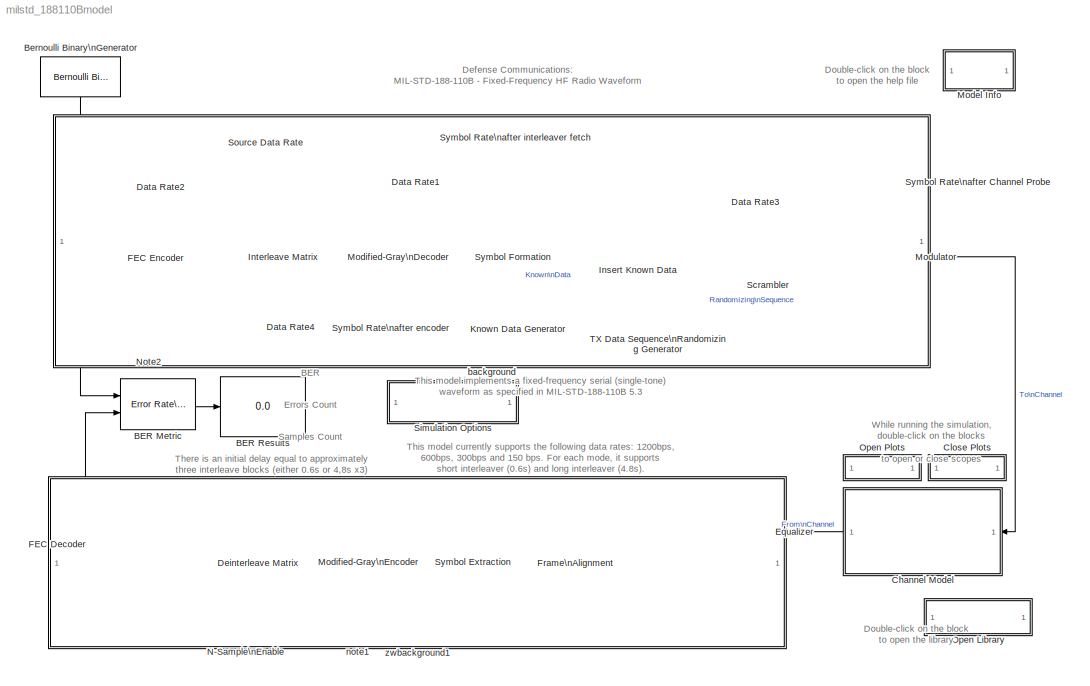
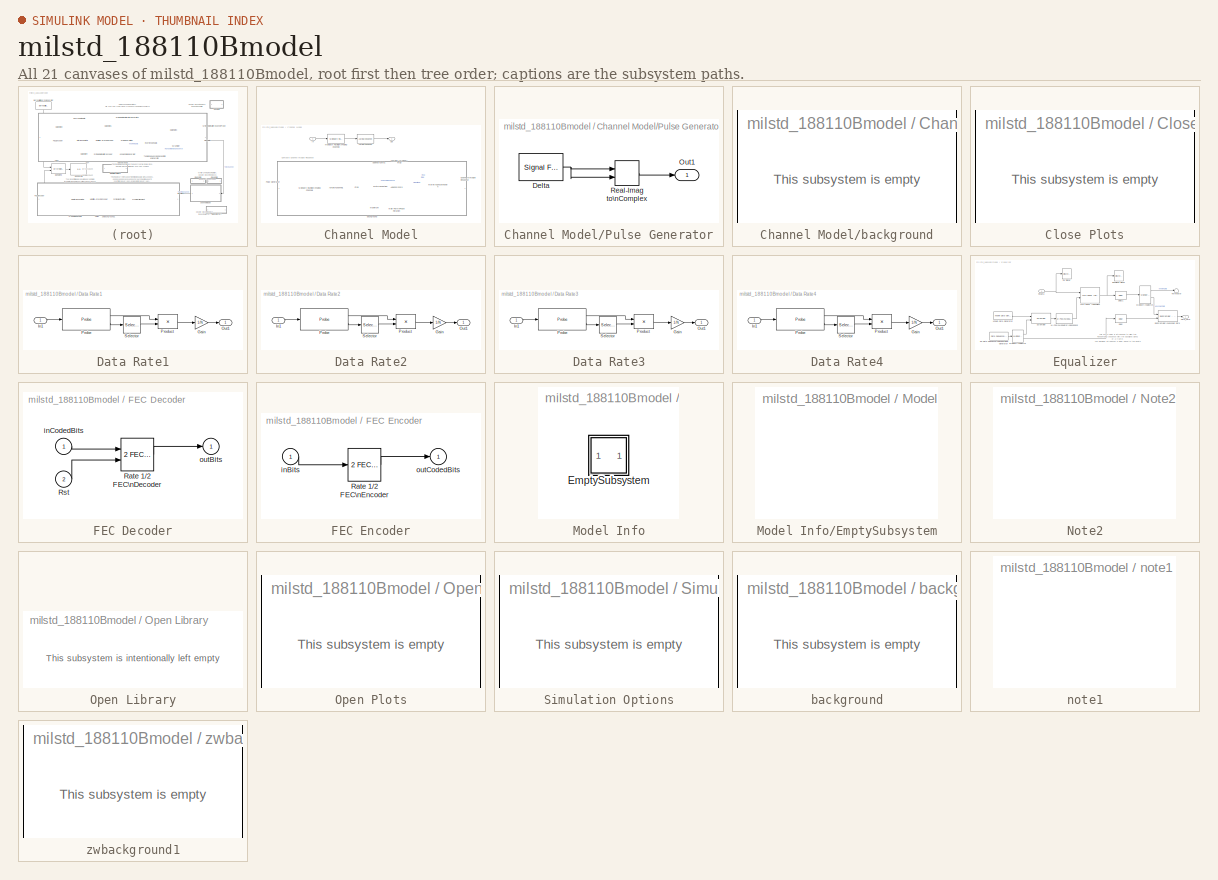
[diagram: thumbnail index - all 21 canvases of the model, root first then tree order]
MODEL milstd_188110Bmodel
KIND model
CONFIG InitFcn = %Initialize variables\n\nmilstd = milstd_initmask([gcs '/Simulation Options']);
BLOCK [Reference] BER Metric  REF=commsink2/Error Rate\nCalculation
  N = 34+milstd.rate*milstd.interl*3 % Three interleave blocks plus traceback
  PMode = Port
  Ports = [2, 1]
  RsMode2 = off
  SourceBlock = commsink2/Error Rate\nCalculation
  SourceType = Error Rate Calculation
  WsName = ErrorVec
  cp_mode = Entire frame
  maxBits = 1e6
  numErr = 100
  st_delay = 0
  stop = off
  subframe = []
BLOCK [Display] BER Results
  Decimation = 1
  Ports = [1]
BLOCK [Reference] Bernoulli Binary\nGenerator  REF=commrandsrc2/Bernoulli Binary\nGenerator
  P = 0.5
  Ports = [0, 1]
  ShowPortLabels = on
  SourceBlock = commrandsrc2/Bernoulli Binary\nGenerator
  SourceType = Bernoulli Binary Generator
  Ts = 1/1200
  frameBased = on
  orient = off
  sampPerFrame = 1200*0.2
  seed = 61
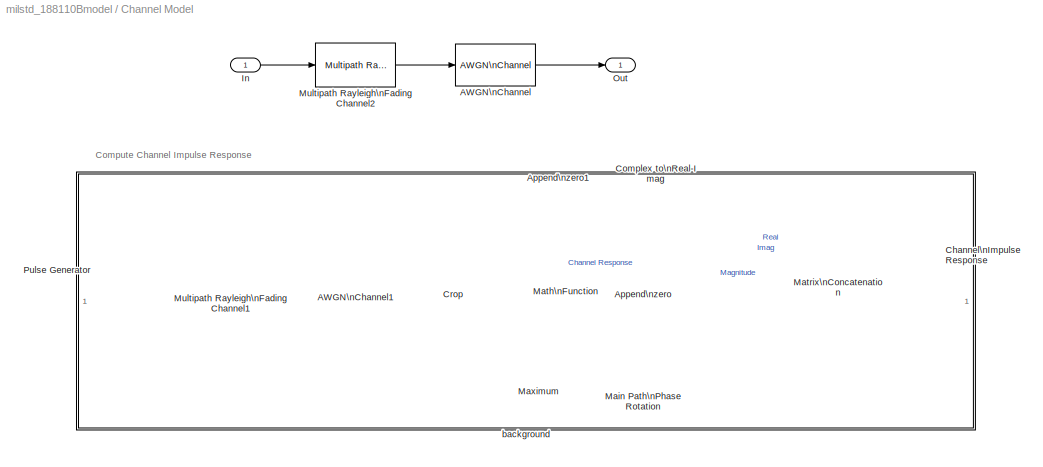
BLOCK [SubSystem] Channel Model
  MaskDisplay = plot(0,0,100,100,[90,60,70,30,40,10],[50,40,70,40,70,50])\ntext(10,20,'Watterson Fading + AWGN')
  MaskIconFrame = on
  MaskIconOpaque = on
  MaskIconRotate = none
  MaskIconUnits = autoscale
  MinAlgLoopOccurrences = off
  Ports = [1, 1]
  PropExecContextAcrossSSBoundary = on
  RTWSystemCode = Auto
  TreatAsAtomicUnit = off
BLOCK [Reference] Channel Model/AWGN\nChannel  REF=commchan2/AWGN\nChannel
  EbNodB = 10
  EsNodB = 27
  Ports = [1, 1]
  Ps = 1
  SNRdB = 10
  ShowPortLabels = on
  SourceBlock = commchan2/AWGN\nChannel
  SourceType = AWGN Channel
  Tsym = 1/2400
  bitsPerSym = 1
  noiseMode = Signal to noise ratio  (Es/No)
  seed = 67
  variance = 1
BLOCK [Reference] Channel Model/AWGN\nChannel1  REF=commchan2/AWGN\nChannel
  EbNodB = 10
  EsNodB = 27
  Ports = [1, 1]
  Ps = 1
  SNRdB = 10
  ShowPortLabels = on
  SourceBlock = commchan2/AWGN\nChannel
  SourceType = AWGN Channel
  Tsym = 1/2400
  bitsPerSym = 1
  noiseMode = Signal to noise ratio  (Es/No)
  seed = 67
  variance = 1
BLOCK [Reference] Channel Model/Append\nzero  REF=dspsigops/Zero Pad
  Ports = [1, 1]
  SourceBlock = dspsigops/Zero Pad
  SourceType = Zero Pad
  numOutCols = 1
  numOutRows = 9
  padNumOutColsSpecMethod = User-specified
  padNumOutRowsSpecMethod = User-specified
  padSigAt = Beginning
  trunc_flag = None
  zpadAlong = Columns
BLOCK [Reference] Channel Model/Append\nzero1  REF=dspsigops/Zero Pad
  Ports = [1, 1]
  SourceBlock = dspsigops/Zero Pad
  SourceType = Zero Pad
  numOutCols = 1
  numOutRows = 9
  padNumOutColsSpecMethod = User-specified
  padNumOutRowsSpecMethod = User-specified
  padSigAt = Beginning
  trunc_flag = None
  zpadAlong = Columns
BLOCK [Reference] Channel Model/Channel\nImpulse Response  REF=dspsnks4/Vector\nScope
  AxisGrid = on
  AxisLegend = on
  AxisProperties = on
  AxisZoom = off
  DisplayProperties = off
  Domain = User-defined
  FigPos = figposition([6    61    57    28])
  FrameNumber = off
  HorizSpan = 1
  InheritXIncr = off
  LineColors = [0 0 1]|[1 0 0]|[0 0 0]
  LineMarkers = *|*|o
  LineProperties = off
  Memory = off
  OpenScopeAtSimStart = on
  OpenScopeImmediately = off
  Ports = [1]
  ScopeProperties = off
  ShowPortLabels = off
  SourceBlock = dspsnks4/Vector\nScope
  SourceType = Vector Scope
  XIncr = 1
  XLabel = Channel Impulse Response
  XRange = [0...Fs/2]
  XUnits = Hertz
  YLabel = Amplitude
  YMax = 2
  YMin = -2
  YUnits = dB
BLOCK [ComplexToRealImag] Channel Model/Complex to\nReal-Imag
  Output = Real and imag
  Ports = [1, 2]
BLOCK [Reference] Channel Model/Crop  REF=dspsigops/Zero Pad
  Ports = [1, 1]
  SourceBlock = dspsigops/Zero Pad
  SourceType = Zero Pad
  numOutCols = 1
  numOutRows = 8
  padNumOutColsSpecMethod = User-specified
  padNumOutRowsSpecMethod = User-specified
  padSigAt = End
  trunc_flag = None
  zpadAlong = Columns
BLOCK [Inport] Channel Model/In
  IconDisplay = Port number
  LatchInput = off
BLOCK [Reference] Channel Model/Main Path\nPhase Rotation  REF=commsink2/Discrete-Time\nScatter Plot\nScope
  AxisGrid = on
  FigPos = figposition([65    61    24    32])
  FrameNumber = off
  LineColors = b
  LineMarkers = .
  Ports = [1]
  ShowPortLabels = on
  SourceBlock = commsink2/Discrete-Time\nScatter Plot\nScope
  SourceType = Discrete-Time Scatter Plot Scope
  Tag = ScatterPlot
  block_type_ = scatter
  fading = on
  figTitle = .
  inphaseLabel = Main Path Phase Rotation
  numLinesMax = 8
  numNewFrames = 5
  numTraces = 100
  offsetEye = 0
  openScopeAtSimStart = on
  quadratureLabel = .
  render = on
  sampPerSymb = 1
  xMax = 2
  xMin = -2
  yMax = 2
  yMin = -2
BLOCK [Math] Channel Model/Math\nFunction
  Operator = magnitude^2
  Ports = [1, 1]
BLOCK [Reference] Channel Model/Matrix\nConcatenation  REF=simulink/Math\nOperations/Matrix\nConcatenation
  Ports = [3, 1]
  SourceBlock = simulink/Math\nOperations/Matrix\nConcatenation
  SourceType = Matrix Concatenation
  catMethod = Horizontal
  numInports = 3
BLOCK [Reference] Channel Model/Maximum  REF=dspstat3/Maximum
  Ports = [1, 1]
  SourceBlock = dspstat3/Maximum
  SourceType = Maximum
  accumFracLength = 30
  accumMode = Same as product output
  accumWordLength = 32
  additionalParams = off
  allowOverrides = on
  fcn = Value
  overflowMode = off
  prodOutputFracLength = 30
  prodOutputMode = Same as input
  prodOutputWordLength = 32
  reset = None
  roundingMode = Floor
BLOCK [Reference] Channel Model/Multipath Rayleigh\nFading Channel1  REF=commchan2/Multipath Rayleigh\nFading Channel
  Fd = 0.075
  Ports = [1, 1]
  Seed = 73
  ShowPortLabels = on
  SourceBlock = commchan2/Multipath Rayleigh\nFading Channel
  SourceType = Multipath Rayleigh Fading Channel
  delayVec = [0 2e-3]
  gainVecdB = [0 0]
  normGain = off
  simTs = 1/2400
BLOCK [Reference] Channel Model/Multipath Rayleigh\nFading Channel2  REF=commchan2/Multipath Rayleigh\nFading Channel
  Fd = 0.075
  Ports = [1, 1]
  Seed = 73
  ShowPortLabels = on
  SourceBlock = commchan2/Multipath Rayleigh\nFading Channel
  SourceType = Multipath Rayleigh Fading Channel
  delayVec = [0 2e-3]
  gainVecdB = [0 0]
  normGain = off
  simTs = 1/2400
BLOCK [Outport] Channel Model/Out
  BusOutputAsStruct = off
  IconDisplay = Port number
BLOCK [SubSystem] Channel Model/Pulse Generator
  MaskDisplay = plot(0,0,45,100,[5 10 10 10 40],[0 0 60 0 0]+20)
  MaskIconFrame = on
  MaskIconOpaque = on
  MaskIconRotate = none
  MaskIconUnits = autoscale
  MinAlgLoopOccurrences = off
  Ports = [0, 1]
  PropExecContextAcrossSSBoundary = on
  RTWSystemCode = Auto
  TreatAsAtomicUnit = off
BLOCK [Reference] Channel Model/Pulse Generator/Delta  REF=dspsrcs4/Signal From\nWorkspace
  OutputAfterFinalValue = Cyclic repetition
  Ports = [0, 1]
  ShowPortLabels = on
  SourceBlock = dspsrcs4/Signal From\nWorkspace
  SourceType = Signal From Workspace
  Ts = 1/2400
  X = [1; zeros(39,1)]
  nsamps = 40
BLOCK [Outport] Channel Model/Pulse Generator/Out1
  BusOutputAsStruct = off
  IconDisplay = Port number
BLOCK [RealImagToComplex] Channel Model/Pulse Generator/Real-Imag to\nComplex
  Input = Real and imag
  Ports = [2, 1]
BLOCK [SubSystem] Channel Model/background
  MaskDisplay = disp('')
  MaskIconFrame = on
  MaskIconOpaque = on
  MaskIconRotate = none
  MaskIconUnits = autoscale
  MinAlgLoopOccurrences = off
  Ports = []
  PropExecContextAcrossSSBoundary = on
  RTWSystemCode = Auto
  TreatAsAtomicUnit = off
BLOCK [SubSystem] Close Plots
  MaskDisplay = disp('Close Scopes');
  MaskIconFrame = on
  MaskIconOpaque = on
  MaskIconRotate = none
  MaskIconUnits = autoscale
  MinAlgLoopOccurrences = off
  OpenFcn = str1 = 'Equalizer';                                                        \nstr2 = 'RX Signal';                                                        \nstr3='Equalized Signal';                                                   \nstr4 = 'Channel Model';                                                    \n                                                                           \nstr5 = 'Main Pa...<+598ch>
  Ports = []
  PropExecContextAcrossSSBoundary = on
  RTWSystemCode = Auto
  TreatAsAtomicUnit = off
BLOCK [SubSystem] Data Rate1
  MaskDisplay = disp('Data Rate')
  MaskEnableString = on
  MaskIconFrame = on
  MaskIconOpaque = on
  MaskIconRotate = none
  MaskIconUnits = autoscale
  MaskPromptString = Bits per symbol:
  MaskStyleString = edit
  MaskToolTipString = on
  MaskTunableValueString = on
  MaskType = Compute Data Rate
  MaskValueString = 2
  MaskVariables = N=@1;
  MaskVisibilityString = on
  MinAlgLoopOccurrences = off
  Ports = [1, 1]
  PropExecContextAcrossSSBoundary = on
  RTWSystemCode = Auto
  TreatAsAtomicUnit = off
BLOCK [Gain] Data Rate1/Gain
  Gain = 1/N
BLOCK [Inport] Data Rate1/In1
  IconDisplay = Port number
  LatchInput = off
BLOCK [Outport] Data Rate1/Out1
  BusOutputAsStruct = off
  IconDisplay = Port number
BLOCK [Probe] Data Rate1/Probe
  Ports = [1, 2]
  ProbeComplexSignal = off
BLOCK [Product] Data Rate1/Product
  InputSameDT = off
  Inputs = */
  Ports = [2, 1]
  RndMeth = Floor
BLOCK [Selector] Data Rate1/Selector
  InputPortWidth = 2
  Ports = [1, 1]
BLOCK [SubSystem] Data Rate2
  MaskDisplay = disp('Data Rate')
  MaskEnableString = on
  MaskIconFrame = on
  MaskIconOpaque = on
  MaskIconRotate = none
  MaskIconUnits = autoscale
  MaskPromptString = Bits per symbol:
  MaskStyleString = edit
  MaskToolTipString = on
  MaskTunableValueString = on
  MaskType = Compute Data Rate
  MaskValueString = 1
  MaskVariables = N=@1;
  MaskVisibilityString = on
  MinAlgLoopOccurrences = off
  Ports = [1, 1]
  PropExecContextAcrossSSBoundary = on
  RTWSystemCode = Auto
  TreatAsAtomicUnit = off
BLOCK [Gain] Data Rate2/Gain
  Gain = 1/N
BLOCK [Inport] Data Rate2/In1
  IconDisplay = Port number
  LatchInput = off
BLOCK [Outport] Data Rate2/Out1
  BusOutputAsStruct = off
  IconDisplay = Port number
BLOCK [Probe] Data Rate2/Probe
  Ports = [1, 2]
  ProbeComplexSignal = off
BLOCK [Product] Data Rate2/Product
  InputSameDT = off
  Inputs = */
  Ports = [2, 1]
  RndMeth = Floor
BLOCK [Selector] Data Rate2/Selector
  InputPortWidth = 2
  Ports = [1, 1]
BLOCK [SubSystem] Data Rate3
  MaskDisplay = disp('Data Rate')
  MaskEnableString = on
  MaskIconFrame = on
  MaskIconOpaque = on
  MaskIconRotate = none
  MaskIconUnits = autoscale
  MaskPromptString = Bits per symbol:
  MaskStyleString = edit
  MaskToolTipString = on
  MaskTunableValueString = on
  MaskType = Compute Data Rate
  MaskValueString = 3
  MaskVariables = N=@1;
  MaskVisibilityString = on
  MinAlgLoopOccurrences = off
  Ports = [1, 1]
  PropExecContextAcrossSSBoundary = on
  RTWSystemCode = Auto
  TreatAsAtomicUnit = off
BLOCK [Gain] Data Rate3/Gain
  Gain = 1/N
BLOCK [Inport] Data Rate3/In1
  IconDisplay = Port number
  LatchInput = off
BLOCK [Outport] Data Rate3/Out1
  BusOutputAsStruct = off
  IconDisplay = Port number
BLOCK [Probe] Data Rate3/Probe
  Ports = [1, 2]
  ProbeComplexSignal = off
BLOCK [Product] Data Rate3/Product
  InputSameDT = off
  Inputs = */
  Ports = [2, 1]
  RndMeth = Floor
BLOCK [Selector] Data Rate3/Selector
  InputPortWidth = 2
  Ports = [1, 1]
BLOCK [SubSystem] Data Rate4
  MaskDisplay = disp('Data Rate')
  MaskEnableString = on
  MaskIconFrame = on
  MaskIconOpaque = on
  MaskIconRotate = none
  MaskIconUnits = autoscale
  MaskPromptString = Bits per symbol:
  MaskStyleString = edit
  MaskToolTipString = on
  MaskTunableValueString = on
  MaskType = Compute Data Rate
  MaskValueString = 1
  MaskVariables = N=@1;
  MaskVisibilityString = on
  MinAlgLoopOccurrences = off
  Ports = [1, 1]
  PropExecContextAcrossSSBoundary = on
  RTWSystemCode = Auto
  TreatAsAtomicUnit = off
BLOCK [Gain] Data Rate4/Gain
  Gain = 1/N
BLOCK [Inport] Data Rate4/In1
  IconDisplay = Port number
  LatchInput = off
BLOCK [Outport] Data Rate4/Out1
  BusOutputAsStruct = off
  IconDisplay = Port number
BLOCK [Probe] Data Rate4/Probe
  Ports = [1, 2]
  ProbeComplexSignal = off
BLOCK [Product] Data Rate4/Product
  InputSameDT = off
  Inputs = */
  Ports = [2, 1]
  RndMeth = Floor
BLOCK [Selector] Data Rate4/Selector
  InputPortWidth = 2
  Ports = [1, 1]
BLOCK [Reference] Deinterleave Matrix  REF=milstd_library/Deinterleave Matrix  (lib defined in mdl_f392efc64685)
  Ports = [1, 1]
  ShowPortLabels = on
  SourceBlock = milstd_library/Deinterleave Matrix
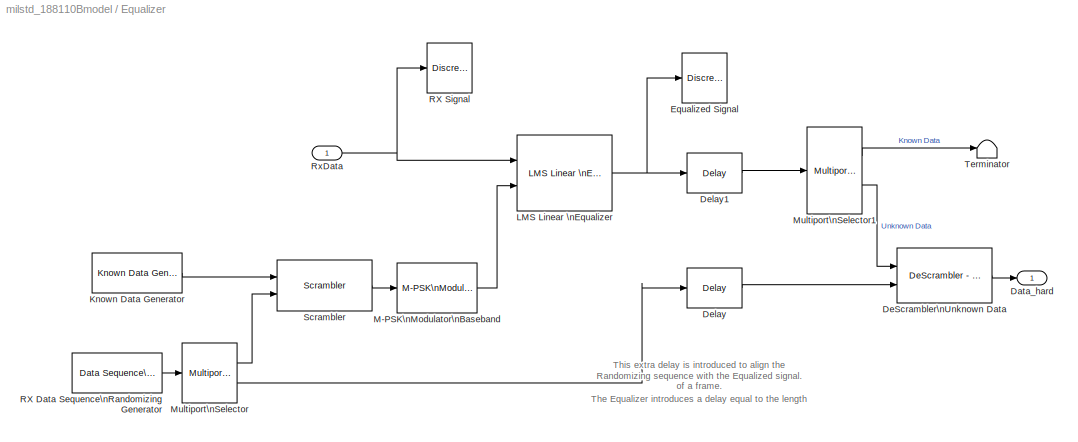
BLOCK [SubSystem] Equalizer
  MaskDisplay = disp('Equalizer:\\nLMS Equalizer');
  MaskIconFrame = on
  MaskIconOpaque = on
  MaskIconRotate = none
  MaskIconUnits = autoscale
  MinAlgLoopOccurrences = off
  Ports = [1, 1]
  PropExecContextAcrossSSBoundary = on
  RTWSystemCode = Auto
  TreatAsAtomicUnit = off
BLOCK [Outport] Equalizer/Data_hard
  BusOutputAsStruct = off
  IconDisplay = Port number
BLOCK [Reference] Equalizer/DeScrambler\nUnknown Data  REF=milstd_library/DeScrambler - complex  (lib defined in mdl_f392efc64685)
  Ports = [2, 1]
  ShowPortLabels = on
  SourceBlock = milstd_library/DeScrambler - complex
  SourceType = Unknown
BLOCK [Reference] Equalizer/Delay  REF=dspsigops/Delay
  Ports = [1, 1]
  SourceBlock = dspsigops/Delay
  SourceType = Delay
  delay = 20
  dif_ic_for_ch = off
  dif_ic_for_dly = off
  dly_unit = Samples
  ic = 0
  ic_detail = off
  reset_popup = None
BLOCK [Reference] Equalizer/Delay1  REF=dspsigops/Delay
  Ports = [1, 1]
  SourceBlock = dspsigops/Delay
  SourceType = Delay
  delay = 40-1
  dif_ic_for_ch = off
  dif_ic_for_dly = off
  dly_unit = Samples
  ic = 0
  ic_detail = off
  reset_popup = None
BLOCK [Reference] Equalizer/Equalized Signal  REF=commsink2/Discrete-Time\nScatter Plot\nScope
  AxisGrid = on
  FigPos = figposition([40    11    32    43])
  FrameNumber = off
  LineColors = b
  LineMarkers = .
  Ports = [1]
  ShowPortLabels = on
  SourceBlock = commsink2/Discrete-Time\nScatter Plot\nScope
  SourceType = Discrete-Time Scatter Plot Scope
  Tag = ScatterPlot
  block_type_ = scatter
  fading = on
  figTitle = .
  inphaseLabel = After Equalizer (To Decoding)
  numLinesMax = 8
  numNewFrames = 40
  numTraces = 160
  offsetEye = 0
  openScopeAtSimStart = on
  quadratureLabel = .
  render = on
  sampPerSymb = 1
  xMax = 1.33819643567585
  xMin = -1.29510330913857
  yMax = 1.30272609148645
  yMin = -1.33057365332797
BLOCK [Reference] Equalizer/Known Data Generator  REF=milstd_library/Known Data Generator  (lib defined in mdl_f392efc64685)
  Ports = [0, 1]
  ShowPortLabels = on
  SourceBlock = milstd_library/Known Data Generator
  SourceType = SubSystem
BLOCK [Reference] Equalizer/LMS Linear \nEqualizer  REF=commeq2/LMS Linear \nEqualizer
  Ports = [2, 1]
  ShowPortLabels = on
  SourceBlock = commeq2/LMS Linear \nEqualizer
  SourceType = LMS Linear Equalizer
  delay = 1
  initWeights = [1 zeros(1,15)]
  leakage = 1
  mode = off
  nSamp = 1
  nTaps = 16
  outErr = off
  outWeights = off
  sigConst = pskmod([0:7],8) % 8-PSK modulation
  stepSize = 0.01
BLOCK [Reference] Equalizer/M-PSK\nModulator\nBaseband  REF=commdigbbndpm2/M-PSK\nModulator\nBaseband
  Enc = Binary
  InType = Integer
  M = 8
  Ph = 0
  Ports = [1, 1]
  SourceBlock = commdigbbndpm2/M-PSK\nModulator\nBaseband
  SourceType = M-PSK Modulator Baseband
  numSamp = 1
BLOCK [Reference] Equalizer/Multiport\nSelector  REF=dspindex/Multiport\nSelector
  Ports = [1, 2]
  SourceBlock = dspindex/Multiport\nSelector
  SourceType = Multiport Selector
  idxCellArray = {[1:20],[21:40] }
  idxErrMode = Clip Index
  rowsOrCols = Rows
BLOCK [Reference] Equalizer/Multiport\nSelector1  REF=dspindex/Multiport\nSelector
  Ports = [1, 2]
  SourceBlock = dspindex/Multiport\nSelector
  SourceType = Multiport Selector
  idxCellArray = { [1:20],[21:40]}
  idxErrMode = Clip Index
  rowsOrCols = Rows
BLOCK [Reference] Equalizer/RX Data Sequence\nRandomizing Generator  REF=milstd_library/Data Sequence\nRandomizing Generator  (lib defined in mdl_f392efc64685)
  Ports = [0, 1]
  ShowPortLabels = on
  SourceBlock = milstd_library/Data Sequence\nRandomizing Generator
  SourceType = SubSystem
BLOCK [Reference] Equalizer/RX Signal  REF=commsink2/Discrete-Time\nScatter Plot\nScope
  AxisGrid = on
  FigPos = figposition([6    11    32    43])
  FrameNumber = off
  LineColors = b
  LineMarkers = .
  Ports = [1]
  ShowPortLabels = on
  SourceBlock = commsink2/Discrete-Time\nScatter Plot\nScope
  SourceType = Discrete-Time Scatter Plot Scope
  Tag = ScatterPlot
  block_type_ = scatter
  fading = on
  figTitle = .
  inphaseLabel = Before Equalizer (From Channel)
  numLinesMax = 8
  numNewFrames = 40
  numTraces = 160
  offsetEye = 0
  openScopeAtSimStart = on
  quadratureLabel = .
  render = on
  sampPerSymb = 1
  xMax = 1.9414795542373
  xMin = -1.91692231790696
  yMax = 1.92280599413788
  yMin = -1.93559587800639
BLOCK [Inport] Equalizer/RxData
  IconDisplay = Port number
  LatchInput = off
BLOCK [Reference] Equalizer/Scrambler  REF=milstd_library/Scrambler  (lib defined in mdl_f392efc64685)
  Ports = [2, 1]
  ShowPortLabels = on
  SourceBlock = milstd_library/Scrambler
  SourceType = Unknown
BLOCK [Terminator] Equalizer/Terminator
BLOCK [SubSystem] FEC Decoder
  AttributesFormatString = %<BlockChoice>
  BlockChoice = Rate 1/2 FEC Decoder
  MemberBlocks = Rate 1/2 FEC Decoder,Rate 1/2 FEC Decoder with Derepetition
  MinAlgLoopOccurrences = off
  Ports = [2, 1]
  PropExecContextAcrossSSBoundary = on
  RTWSystemCode = Auto
  ShowPortLabels = off
  TemplateBlock = milstd_library/FEC Decoder
  TreatAsAtomicUnit = off
BLOCK [Reference] FEC Decoder/Rate 1//2 FEC\nDecoder  REF=milstd_library/Rate 1//2 FEC\nDecoder  (lib defined in mdl_f392efc64685)
  Ports = [2, 1]
  ShowPortLabels = on
  SourceBlock = milstd_library/Rate 1//2 FEC\nDecoder
BLOCK [Inport] FEC Decoder/Rst
  IconDisplay = Port number
  LatchInput = off
  Port = 2
BLOCK [Inport] FEC Decoder/inCodedBits
  IconDisplay = Port number
  LatchInput = off
BLOCK [Outport] FEC Decoder/outBits
  BusOutputAsStruct = off
  IconDisplay = Port number
BLOCK [SubSystem] FEC Encoder
  AttributesFormatString = %<BlockChoice>
  BlockChoice = Rate 1/2 FEC Encoder
  MemberBlocks = Rate 1/2 FEC Encoder,Rate 1/2 FEC Encoder with Repetition
  MinAlgLoopOccurrences = off
  Ports = [1, 1]
  PropExecContextAcrossSSBoundary = on
  RTWSystemCode = Auto
  ShowPortLabels = off
  TemplateBlock = milstd_library/FEC Encoder
  TreatAsAtomicUnit = off
BLOCK [Reference] FEC Encoder/Rate 1//2 FEC\nEncoder  REF=milstd_library/Rate 1//2 FEC\nEncoder  (lib defined in mdl_f392efc64685)
  Ports = [1, 1]
  ShowPortLabels = on
  SourceBlock = milstd_library/Rate 1//2 FEC\nEncoder
BLOCK [Inport] FEC Encoder/inBits
  IconDisplay = Port number
  LatchInput = off
BLOCK [Outport] FEC Encoder/outCodedBits
  BusOutputAsStruct = off
  IconDisplay = Port number
BLOCK [Reference] Frame\nAlignment  REF=milstd_library/Frame\nAlignment  (lib defined in mdl_f392efc64685)
  Ports = [1, 1]
  ShowPortLabels = on
  SourceBlock = milstd_library/Frame\nAlignment
BLOCK [Reference] Insert Known Data  REF=milstd_library/Insert Known Data  (lib defined in mdl_f392efc64685)
  Ports = [2, 1]
  ShowPortLabels = on
  SourceBlock = milstd_library/Insert Known Data
BLOCK [Reference] Interleave Matrix  REF=milstd_library/Interleave Matrix  (lib defined in mdl_f392efc64685)
  Ports = [1, 1]
  ShowPortLabels = on
  SourceBlock = milstd_library/Interleave Matrix
BLOCK [Reference] Known Data Generator  REF=milstd_library/Known Data Generator  (lib defined in mdl_f392efc64685)
  Ports = [0, 1]
  ShowPortLabels = on
  SourceBlock = milstd_library/Known Data Generator
  SourceType = SubSystem
BLOCK [SubSystem] Model Info
  CopyFcn = slcm CopyBlock;
  DeleteFcn = slcm Cancel;
  InitFcn = slcm('UpdateAllCMBlocksInThisModelInit')
  LoadFcn = slcm LoadBlock;
  MaskCallbackString = ||||||||||||||||||||||||||||||
  MaskDescription = This block allows revision control information to be displayed within the model.
  MaskDisplay = text(str2num(LeftAlignmentValue), 0.5, MaskDisplayString, 'HorizontalAlignment', HorizontalTextAlignment)\n
  MaskEnableString = on,on,on,on,on,on,on,on,on,on,on,on,on,on,on,on,on,on,on,on,on,on,on,on,on,on,on,on,on,on,on
  MaskIconFrame = on
  MaskIconOpaque = on
  MaskIconRotate = none
  MaskIconUnits = normalized
  MaskPromptString = InitialSaveTempField|InitialBlockCM|BlockCM|Frame|SaveTempField|DisplayStringWithTags|MaskDisplayString|HorizontalTextAlignment|LeftAlignmentValue|SourceBlockDiagram|TagMaxNumber|CMTag1|CMTag2|CMTag3|CMTag4|CMTag5|CMTag6|CMTag7|CMTag8|CMTag9|CMTag10|CMTag11|CMTag12|CMTag13|CMTag14|CMTag15|CMTag16|CMTag17|CMTag18|CMTag19|CMTag20
  MaskSelfModifiable = on
  MaskStyleString = edit,edit,edit,edit,edit,edit,edit,edit,edit,edit,edit,edit,edit,edit,edit,edit,edit,edit,edit,edit,edit,edit,edit,edit,edit,edit,edit,edit,edit,edit,edit
  MaskTabNameString = ,,,,,,,,,,,,,,,,,,,,,,,,,,,,,,
  MaskToolTipString = on,on,on,on,on,on,on,on,on,on,on,on,on,on,on,on,on,on,on,on,on,on,on,on,on,on,on,on,on,on,on
  MaskTunableValueString = on,on,on,on,on,on,on,on,on,on,on,on,on,on,on,on,on,on,on,on,on,on,on,on,on,on,on,on,on,on,on
  MaskType = CMBlock
  MaskValueString = |None|None|on||Info|Info|Center|0.5|milstd_188110Bmodel|20||||||||||||||||||||
  MaskVarAliasString = ,,,,,,,,,,,,,,,,,,,,,,,,,,,,,,
  MaskVariables = InitialSaveTempField=&1;InitialBlockCM=&2;BlockCM=&3;Frame=&4;SaveTempField=&5;DisplayStringWithTags=&6;MaskDisplayString=&7;HorizontalTextAlignment=&8;LeftAlignmentValue=&9;SourceBlockDiagram=&10;TagMaxNumber=@11;CMTag1=&12;CMTag2=&13;CMTag3=&14;CMTag4=&15;CMTag5=&16;CMTag6=&17;CMTag7=&18;CMTag8=&19;CMTag9=&20;CMTag10=&21;CMTag11=&22;CMTag12=&23;CMTag13=&24;CMTag14=&25;CMTag15=&26;CMTag16=&27;CMT...<+45ch>
  MaskVisibilityString = off,off,off,off,off,off,off,off,off,off,off,off,off,off,off,off,off,off,off,off,off,off,off,off,off,off,off,off,off,off,off
  MinAlgLoopOccurrences = off
  NameChangeFcn = slcm Rename;
  OpenFcn = commdemohelp;
  Ports = []
  PostSaveFcn = slcm('UpdateAllCMBlocksInThisModel')
  PropExecContextAcrossSSBoundary = on
  RTWSystemCode = Auto
  TreatAsAtomicUnit = off
BLOCK [SubSystem] Model Info/EmptySubsystem
  MinAlgLoopOccurrences = off
  Ports = []
  PropExecContextAcrossSSBoundary = on
  RTWSystemCode = Auto
  TreatAsAtomicUnit = off
BLOCK [Reference] Modified-Gray\nDecoder  REF=milstd_library/Modified-Gray\nDecoder  (lib defined in mdl_f392efc64685)
  Ports = [1, 1]
  ShowPortLabels = on
  SourceBlock = milstd_library/Modified-Gray\nDecoder
BLOCK [Reference] Modified-Gray\nEncoder  REF=milstd_library/Modified-Gray\nEncoder  (lib defined in mdl_f392efc64685)
  Ports = [1, 1]
  ShowPortLabels = on
  SourceBlock = milstd_library/Modified-Gray\nEncoder
  SourceType = Modified-Gray Encoder
BLOCK [Reference] Modulator  REF=commdigbbndpm2/M-PSK\nModulator\nBaseband
  Enc = Binary
  InType = Integer
  M = 8
  Ph = 0
  Ports = [1, 1]
  SourceBlock = commdigbbndpm2/M-PSK\nModulator\nBaseband
  SourceType = M-PSK Modulator Baseband
  numSamp = 1
BLOCK [Reference] N-Sample\nEnable  REF=dspswit3/N-Sample\nEnable
  ActiveLevel = Low (0)
  DataType = Logical
  N = round(milstd.interl*3/0.2)
  Ports = [0, 1]
  SourceBlock = dspswit3/N-Sample\nEnable
  SourceType = N-Sample Enable
  TriggerType = Rising edge
  Ts = 0.2
  reset = off
BLOCK [SubSystem] Note2
  MaskDisplay = disp('Using a configurable\\nsubsystem, encoder\\n and decoder switch to\\nsupport bit repetition\\ndepending on data rate')
  MaskIconFrame = off
  MaskIconOpaque = on
  MaskIconRotate = none
  MaskIconUnits = autoscale
  MinAlgLoopOccurrences = off
  Ports = []
  PropExecContextAcrossSSBoundary = on
  RTWSystemCode = Auto
  TreatAsAtomicUnit = off
BLOCK [SubSystem] Open Library
  MaskDisplay = disp('MIL-STD-188-110B\\nLibrary')
  MaskIconFrame = on
  MaskIconOpaque = on
  MaskIconRotate = none
  MaskIconUnits = autoscale
  MinAlgLoopOccurrences = off
  OpenFcn = open('milstd_library.mdl');
  Ports = []
  PropExecContextAcrossSSBoundary = on
  RTWSystemCode = Auto
  ShowPortLabels = off
  TreatAsAtomicUnit = off
BLOCK [SubSystem] Open Plots
  MaskDisplay = disp('Open Scopes');
  MaskIconFrame = on
  MaskIconOpaque = on
  MaskIconRotate = none
  MaskIconUnits = autoscale
  MinAlgLoopOccurrences = off
  OpenFcn = str1 = 'Equalizer';                                                        \nstr2 = 'RX Signal';                                                        \nstr3='Equalized Signal';                                                   \nstr4 = 'Channel Model';                                                    \n                                                                           \nstr5 = 'Main Pa...<+599ch>
  Ports = []
  PropExecContextAcrossSSBoundary = on
  RTWSystemCode = Auto
  TreatAsAtomicUnit = off
BLOCK [Reference] Scrambler  REF=milstd_library/Scrambler  (lib defined in mdl_f392efc64685)
  Ports = [2, 1]
  ShowPortLabels = on
  SourceBlock = milstd_library/Scrambler
BLOCK [SubSystem] Simulation Options
  AttributesFormatString = Data Rate = %<infRate> bps\\nInterleaver Length = %<intLength> s
  MaskCallbackString = |
  MaskDescription = Select the different options for the simulation.\n\nThis model currently supports the following data rates: 1200 bps, 600 bps, 300 bps and 150 bps. \n\nFor each data rate, the model implements short (0.6s) and long (4.8s) interleaver.
  MaskDisplay = disp('Simulation\\nOptions')
  MaskEnableString = on,on
  MaskHelp = eval('commdemohelp;');
  MaskIconFrame = on
  MaskIconOpaque = on
  MaskIconRotate = none
  MaskIconUnits = autoscale
  MaskInitialization = milstd = milstd_initmask(gcb);\nassignin('base','milstd',milstd);
  MaskPromptString = Information Rate (bps):|Interleaver length (s):
  MaskStyleString = popup(1200|600|300|150),popup(4.8|0.6)
  MaskTabNameString = ,
  MaskToolTipString = on,on
  MaskTunableValueString = on,on
  MaskType = Simulation options
  MaskValueString = 1200|0.6
  MaskVarAliasString = ,
  MaskVariables = infRate=@1;intLength=@2;
  MaskVisibilityString = on,on
  MinAlgLoopOccurrences = off
  Ports = []
  PropExecContextAcrossSSBoundary = on
  RTWSystemCode = Auto
  TreatAsAtomicUnit = off
BLOCK [Display] Source Data Rate
  Decimation = 1
  Ports = [1]
BLOCK [Reference] Symbol Extraction  REF=milstd_library/Symbol Extraction  (lib defined in mdl_f392efc64685)
  Ports = [1, 1]
  ShowPortLabels = on
  SourceBlock = milstd_library/Symbol Extraction
BLOCK [Reference] Symbol Formation  REF=milstd_library/Symbol Formation  (lib defined in mdl_f392efc64685)
  Ports = [1, 1]
  ShowPortLabels = on
  SourceBlock = milstd_library/Symbol Formation
BLOCK [Display] Symbol Rate\nafter Channel Probe
  Decimation = 1
  Ports = [1]
BLOCK [Display] Symbol Rate\nafter encoder
  Decimation = 1
  Ports = [1]
BLOCK [Display] Symbol Rate\nafter interleaver fetch
  Decimation = 1
  Ports = [1]
BLOCK [Reference] TX Data Sequence\nRandomizing Generator  REF=milstd_library/Data Sequence\nRandomizing Generator  (lib defined in mdl_f392efc64685)
  Ports = [0, 1]
  ShowPortLabels = on
  SourceBlock = milstd_library/Data Sequence\nRandomizing Generator
  SourceType = SubSystem
BLOCK [SubSystem] background
  MaskDisplay = disp('')
  MaskIconFrame = on
  MaskIconOpaque = on
  MaskIconRotate = none
  MaskIconUnits = autoscale
  MinAlgLoopOccurrences = off
  Ports = []
  PropExecContextAcrossSSBoundary = on
  RTWSystemCode = Auto
  TreatAsAtomicUnit = off
BLOCK [SubSystem] note1
  MaskDisplay = disp('Need to reset encoder after\\n initial frame delay introduced\\n by the deinterleaver')
  MaskIconFrame = off
  MaskIconOpaque = on
  MaskIconRotate = none
  MaskIconUnits = autoscale
  MinAlgLoopOccurrences = off
  Ports = []
  PropExecContextAcrossSSBoundary = on
  RTWSystemCode = Auto
  TreatAsAtomicUnit = off
BLOCK [SubSystem] zwbackground1
  MaskDisplay = disp('')
  MaskIconFrame = on
  MaskIconOpaque = on
  MaskIconRotate = none
  MaskIconUnits = autoscale
  MinAlgLoopOccurrences = off
  Ports = []
  PropExecContextAcrossSSBoundary = on
  RTWSystemCode = Auto
  TreatAsAtomicUnit = off
ANNOTATION (root): BER
ANNOTATION (root): Defense Communications:\nMIL-STD-188-110B - Fixed-Frequency HF Radio Waveform
ANNOTATION (root): Double-click on the block\nto open the help file
ANNOTATION (root): Double-click on the block\nto open the library
ANNOTATION (root): Errors Count
ANNOTATION (root): Samples Count
ANNOTATION (root): There is an initial delay equal to approximately\nthree interleave blocks (either 0.6s or 4,8s x3)
ANNOTATION (root): This model currently supports the following data rates: 1200bps, \n600bps, 300bps and 150 bps. For each mode, it supports \nshort interleaver (0.6s) and long interleaver (4.8s).
ANNOTATION (root): This model implements a fixed-frequency serial (single-tone)\nwaveform as specified in MIL-STD-188-110B 5.3
ANNOTATION (root): While running the simulation, \ndouble-click on the blocks\nto open or close scopes
ANNOTATION Channel Model: Compute Channel Impulse Response
ANNOTATION Channel Model/background: This subsystem is empty
ANNOTATION Close Plots: This subsystem is empty
ANNOTATION Equalizer: This extra delay is introduced to align the \nRandomizing sequence with the Equalized signal.\nThe Equalizer introduces a delay equal to the length\nof a frame.
ANNOTATION Open Library: This subsystem is intentionally left empty
ANNOTATION Open Plots: This subsystem is empty
ANNOTATION Simulation Options: This subsystem is empty
ANNOTATION background: This subsystem is empty
ANNOTATION zwbackground1: This subsystem is empty
LINE BER Metric:1 -> BER Results:1
NET Bernoulli Binary\nGenerator:1 -> BER Metric:1, Data Rate2:1, FEC Encoder:1
LINE Channel Model/AWGN\nChannel1:1 -> Channel Model/Crop:1
LINE Channel Model/AWGN\nChannel:1 -> Channel Model/Out:1
LINE Channel Model/Append\nzero1:1 -> Channel Model/Complex to\nReal-Imag:1
LINE Channel Model/Append\nzero:1 -> Channel Model/Matrix\nConcatenation:3
LINE Channel Model/Complex to\nReal-Imag:1 -> Channel Model/Matrix\nConcatenation:1
LINE Channel Model/Complex to\nReal-Imag:2 -> Channel Model/Matrix\nConcatenation:2
NET Channel Model/Crop:1 -> Channel Model/Append\nzero1:1, Channel Model/Math\nFunction:1, Channel Model/Maximum:1
LINE Channel Model/In:1 -> Channel Model/Multipath Rayleigh\nFading Channel2:1
LINE Channel Model/Math\nFunction:1 -> Channel Model/Append\nzero:1
LINE Channel Model/Matrix\nConcatenation:1 -> Channel Model/Channel\nImpulse Response:1
LINE Channel Model/Maximum:1 -> Channel Model/Main Path\nPhase Rotation:1
LINE Channel Model/Multipath Rayleigh\nFading Channel1:1 -> Channel Model/AWGN\nChannel1:1
LINE Channel Model/Multipath Rayleigh\nFading Channel2:1 -> Channel Model/AWGN\nChannel:1
NET Channel Model/Pulse Generator/Delta:1 -> Channel Model/Pulse Generator/Real-Imag to\nComplex:1, Channel Model/Pulse Generator/Real-Imag to\nComplex:2
LINE Channel Model/Pulse Generator/Real-Imag to\nComplex:1 -> Channel Model/Pulse Generator/Out1:1
LINE Channel Model/Pulse Generator:1 -> Channel Model/Multipath Rayleigh\nFading Channel1:1
LINE Channel Model:1 -> Equalizer:1
LINE Data Rate1/Gain:1 -> Data Rate1/Out1:1
LINE Data Rate1/In1:1 -> Data Rate1/Probe:1
LINE Data Rate1/Probe:1 -> Data Rate1/Product:1
LINE Data Rate1/Probe:2 -> Data Rate1/Selector:1
LINE Data Rate1/Product:1 -> Data Rate1/Gain:1
LINE Data Rate1/Selector:1 -> Data Rate1/Product:2
LINE Data Rate1:1 -> Symbol Rate\nafter interleaver fetch:1
LINE Data Rate2/Gain:1 -> Data Rate2/Out1:1
LINE Data Rate2/In1:1 -> Data Rate2/Probe:1
LINE Data Rate2/Probe:1 -> Data Rate2/Product:1
LINE Data Rate2/Probe:2 -> Data Rate2/Selector:1
LINE Data Rate2/Product:1 -> Data Rate2/Gain:1
LINE Data Rate2/Selector:1 -> Data Rate2/Product:2
LINE Data Rate2:1 -> Source Data Rate:1
LINE Data Rate3/Gain:1 -> Data Rate3/Out1:1
LINE Data Rate3/In1:1 -> Data Rate3/Probe:1
LINE Data Rate3/Probe:1 -> Data Rate3/Product:1
LINE Data Rate3/Probe:2 -> Data Rate3/Selector:1
LINE Data Rate3/Product:1 -> Data Rate3/Gain:1
LINE Data Rate3/Selector:1 -> Data Rate3/Product:2
LINE Data Rate3:1 -> Symbol Rate\nafter Channel Probe:1
LINE Data Rate4/Gain:1 -> Data Rate4/Out1:1
LINE Data Rate4/In1:1 -> Data Rate4/Probe:1
LINE Data Rate4/Probe:1 -> Data Rate4/Product:1
LINE Data Rate4/Probe:2 -> Data Rate4/Selector:1
LINE Data Rate4/Product:1 -> Data Rate4/Gain:1
LINE Data Rate4/Selector:1 -> Data Rate4/Product:2
LINE Data Rate4:1 -> Symbol Rate\nafter encoder:1
LINE Deinterleave Matrix:1 -> FEC Decoder:1
LINE Equalizer/DeScrambler\nUnknown Data:1 -> Equalizer/Data_hard:1
LINE Equalizer/Delay1:1 -> Equalizer/Multiport\nSelector1:1
LINE Equalizer/Delay:1 -> Equalizer/DeScrambler\nUnknown Data:2
LINE Equalizer/Known Data Generator:1 -> Equalizer/Scrambler:1
NET Equalizer/LMS Linear \nEqualizer:1 -> Equalizer/Delay1:1, Equalizer/Equalized Signal:1
LINE Equalizer/M-PSK\nModulator\nBaseband:1 -> Equalizer/LMS Linear \nEqualizer:2
LINE Equalizer/Multiport\nSelector1:1 -> Equalizer/Terminator:1
LINE Equalizer/Multiport\nSelector1:2 -> Equalizer/DeScrambler\nUnknown Data:1
LINE Equalizer/Multiport\nSelector:1 -> Equalizer/Scrambler:2
LINE Equalizer/Multiport\nSelector:2 -> Equalizer/Delay:1
LINE Equalizer/RX Data Sequence\nRandomizing Generator:1 -> Equalizer/Multiport\nSelector:1
NET Equalizer/RxData:1 -> Equalizer/LMS Linear \nEqualizer:1, Equalizer/RX Signal:1
LINE Equalizer/Scrambler:1 -> Equalizer/M-PSK\nModulator\nBaseband:1
LINE Equalizer:1 -> Frame\nAlignment:1
LINE FEC Decoder/Rate 1//2 FEC\nDecoder:1 -> FEC Decoder/outBits:1
LINE FEC Decoder/Rst:1 -> FEC Decoder/Rate 1//2 FEC\nDecoder:2
LINE FEC Decoder/inCodedBits:1 -> FEC Decoder/Rate 1//2 FEC\nDecoder:1
LINE FEC Decoder:1 -> BER Metric:2
LINE FEC Encoder/Rate 1//2 FEC\nEncoder:1 -> FEC Encoder/outCodedBits:1
LINE FEC Encoder/inBits:1 -> FEC Encoder/Rate 1//2 FEC\nEncoder:1
NET FEC Encoder:1 -> Data Rate4:1, Interleave Matrix:1
LINE Frame\nAlignment:1 -> Symbol Extraction:1
NET Insert Known Data:1 -> Data Rate3:1, Scrambler:1
NET Interleave Matrix:1 -> Data Rate1:1, Modified-Gray\nDecoder:1
LINE Known Data Generator:1 -> Insert Known Data:2
LINE Modified-Gray\nDecoder:1 -> Symbol Formation:1
LINE Modified-Gray\nEncoder:1 -> Deinterleave Matrix:1
LINE Modulator:1 -> Channel Model:1
LINE N-Sample\nEnable:1 -> FEC Decoder:2
LINE Scrambler:1 -> Modulator:1
LINE Symbol Extraction:1 -> Modified-Gray\nEncoder:1
LINE Symbol Formation:1 -> Insert Known Data:1
LINE TX Data Sequence\nRandomizing Generator:1 -> Scrambler:2
note: NET lines group one-source signal fan-out (src -> all destinations, sorted); 1:1 wires keep LINE
